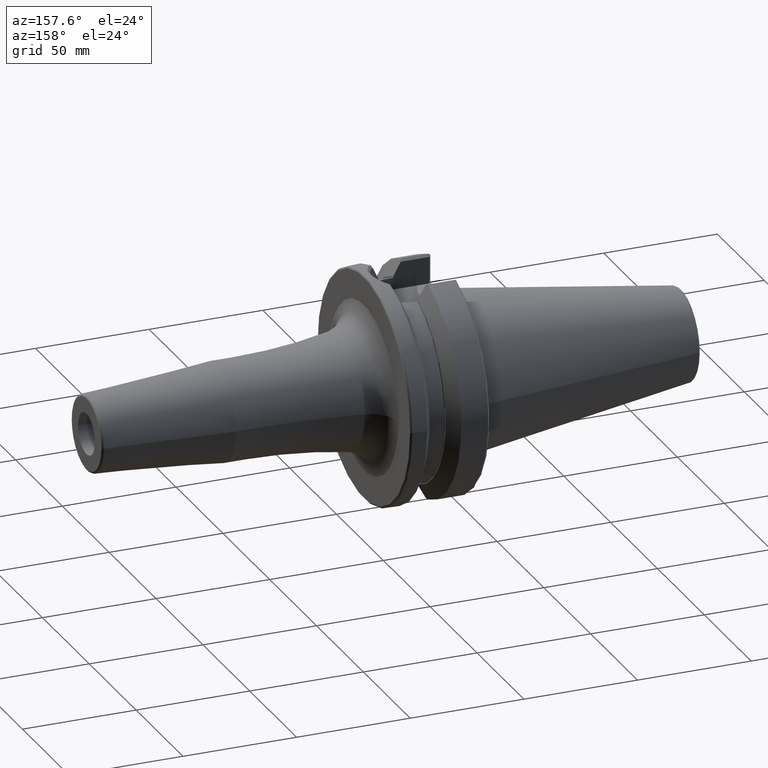
[diagram: clean part render]
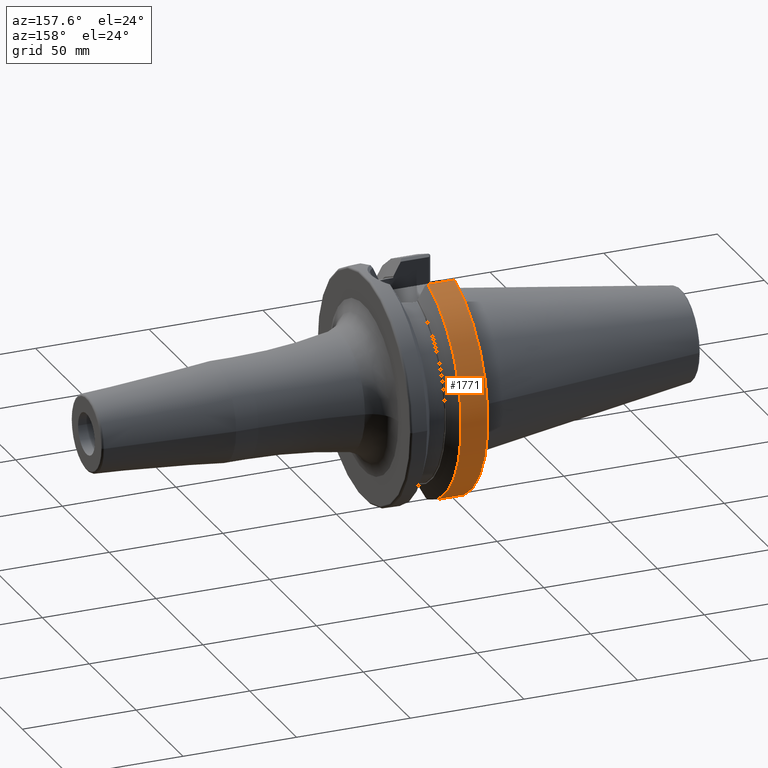
[diagram: same view with one face highlighted and labeled with its STEP entity id]
A machine part, auxiliary view. The second image highlights one B-rep face of the part: STEP entity #1771.
In plain terms, the highlighted cylindrical surface (partial cylindrical patch) has radius 49.9875 mm, axis along (1, 0, 0).
Its self-contained STEP definition (entity closure, byte-faithful):
#227=CARTESIAN_POINT('',(4.E0,0.E0,0.E0));
#228=DIRECTION('',(-1.E0,0.E0,0.E0));
#229=DIRECTION('',(0.E0,2.837968869610E-1,9.588844179312E-1));
#230=AXIS2_PLACEMENT_3D('',#227,#228,#229);
#232=DIRECTION('',(-1.E0,-7.302338022926E-8,-9.708531933347E-8));
#233=VECTOR('',#232,1.166933176412E1);
#234=CARTESIAN_POINT('',(1.566933176383E1,1.386327333875E1,-4.802665727057E1));
#235=LINE('',#234,#233);
#236=CARTESIAN_POINT('',(1.566933176383E1,0.E0,0.E0));
#237=DIRECTION('',(1.E0,0.E0,0.E0));
#238=DIRECTION('',(0.E0,2.773348004750E-1,-9.607733387462E-1));
#239=AXIS2_PLACEMENT_3D('',#236,#237,#238);
#241=DIRECTION('',(9.999999999989E-1,8.887251737038E-7,-1.189757232592E-6));
#242=VECTOR('',#241,1.166933177277E1);
#243=CARTESIAN_POINT('',(3.999999991073E0,1.418628651613E1,4.793224872501E1));
#244=LINE('',#243,#242);
#571=CARTESIAN_POINT('',(3.999999999701E0,1.386327248661E1,-4.802665840350E1));
#1362=CARTESIAN_POINT('',(1.566933176383E1,1.386327333875E1,-4.802665727057E1));
#1363=CARTESIAN_POINT('',(1.566933176383E1,1.418629688696E1,4.793223484134E1));
#1364=VERTEX_POINT('',#1362);
#1365=VERTEX_POINT('',#1363);
#1377=CARTESIAN_POINT('',(4.E0,1.418631682991E1,4.793222893890E1));
#1379=VERTEX_POINT('',#1377);
#1394=VERTEX_POINT('',#571);
#1757=CARTESIAN_POINT('',(-1.0879E2,0.E0,0.E0));
#1758=DIRECTION('',(1.E0,0.E0,0.E0));
#1759=DIRECTION('',(0.E0,-1.E0,0.E0));
#1760=AXIS2_PLACEMENT_3D('',#1757,#1758,#1759);
#1761=CYLINDRICAL_SURFACE('',#1760,4.99875E1);
#1763=ORIENTED_EDGE('',*,*,#1762,.T.);
#1765=ORIENTED_EDGE('',*,*,#1764,.F.);
#1766=ORIENTED_EDGE('',*,*,#1710,.T.);
#1768=ORIENTED_EDGE('',*,*,#1767,.F.);
#1769=EDGE_LOOP('',(#1763,#1765,#1766,#1768));
#1770=FACE_OUTER_BOUND('',#1769,.F.);
#1771=ADVANCED_FACE('',(#1770),#1761,.T.);
#231=CIRCLE('',#230,4.99875E1);
#240=CIRCLE('',#239,4.99875E1);
#1710=EDGE_CURVE('',#1364,#1365,#240,.T.);
#1762=EDGE_CURVE('',#1379,#1394,#231,.T.);
#1764=EDGE_CURVE('',#1364,#1394,#235,.T.);
#1767=EDGE_CURVE('',#1379,#1365,#244,.T.);